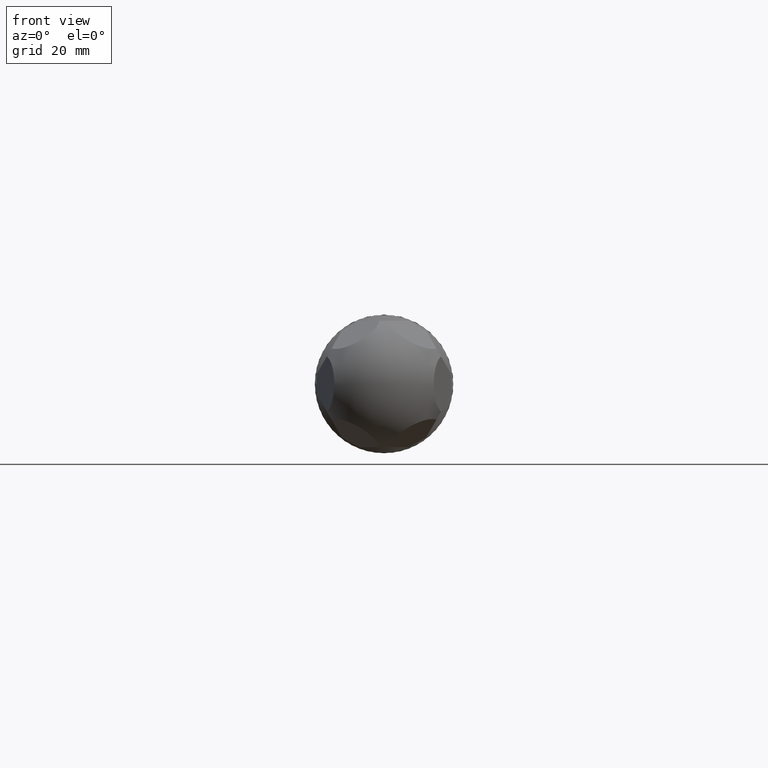
[diagram: clean part render]
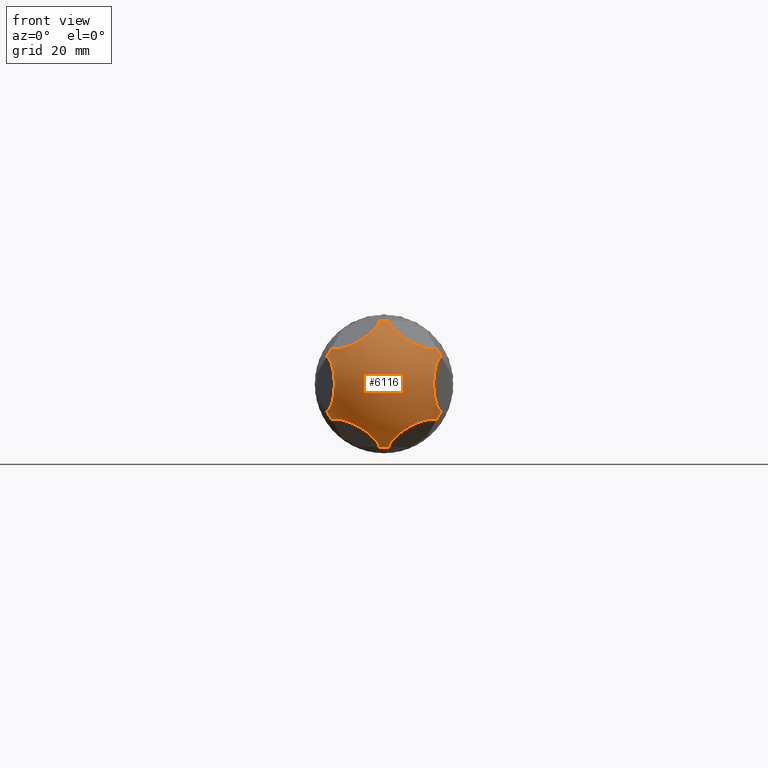
[diagram: same view with one face highlighted and labeled with its STEP entity id]
A machine part, front view. The second image highlights one B-rep face of the part: STEP entity #6116.
In plain terms, the highlighted spherical surface has radius 12 mm.
Its self-contained STEP definition (entity closure, byte-faithful):
#104 = CARTESIAN_POINT ( 'NONE',  ( -9.075063361976001275, 52.84065305851191141, 6.181529175150764388 ) ) ;
#484 = EDGE_CURVE ( 'NONE', #12026, #7731, #12144, .T. ) ;
#645 = CARTESIAN_POINT ( 'NONE',  ( 5.144817098802827005, 51.74512056941608051, 8.911084610775652948 ) ) ;
#703 = CARTESIAN_POINT ( 'NONE',  ( 10.28963419760569309, 51.74512056941608051, 6.517799810258605289E-33 ) ) ;
#704 = EDGE_CURVE ( 'NONE', #9868, #4778, #3738, .T. ) ;
#718 = CIRCLE ( 'NONE', #1258, 4.908920451586066491 ) ;
#1030 = CARTESIAN_POINT ( 'NONE',  ( 9.890892980903238652, 52.84065305851193983, -4.768470824849206480 ) ) ;
#1080 = DIRECTION ( 'NONE',  ( -0.3420201433256695456, -0.9396926207859080948, 0.000000000000000000 ) ) ;
#1222 = CARTESIAN_POINT ( 'NONE',  ( -9.482978171439643944, 47.99999999999999289, 5.474999999999947242 ) ) ;
#1258 = AXIS2_PLACEMENT_3D ( 'NONE', #6916, #5011, #9755 ) ;
#1378 = AXIS2_PLACEMENT_3D ( 'NONE', #6597, #9433, #10300 ) ;
#1452 = CARTESIAN_POINT ( 'NONE',  ( -0.8158296189273296362, 52.84065305851193983, 10.94999999999999751 ) ) ;
#1534 = DIRECTION ( 'NONE',  ( -0.4698463103929521045, -0.3420201433256697121, -0.8137976813493744688 ) ) ;
#1668 = DIRECTION ( 'NONE',  ( 0.5000000000000132117, 0.000000000000000000, -0.8660254037844309360 ) ) ;
#1676 = VERTEX_POINT ( 'NONE', #1030 ) ;
#1747 = DIRECTION ( 'NONE',  ( -0.9396926207859079838, -0.3420201433256697121, -0.000000000000000000 ) ) ;
#1797 = ORIENTED_EDGE ( 'NONE', *, *, #484, .T. ) ;
#1953 = ORIENTED_EDGE ( 'NONE', *, *, #8633, .T. ) ;
#2637 = AXIS2_PLACEMENT_3D ( 'NONE', #7490, #4015, #1668 ) ;
#2696 = DIRECTION ( 'NONE',  ( -0.3420201433256695456, 0.9396926207859080948, 0.000000000000000000 ) ) ;
#2753 = ORIENTED_EDGE ( 'NONE', *, *, #9641, .F. ) ;
#2781 = FACE_OUTER_BOUND ( 'NONE', #3601, .T. ) ;
#2950 = CIRCLE ( 'NONE', #4974, 4.908920451586067379 ) ;
#2951 = CARTESIAN_POINT ( 'NONE',  ( -5.144817098802763944, 51.74512056941608051, -8.911084610775686699 ) ) ;
#2995 = AXIS2_PLACEMENT_3D ( 'NONE', #3711, #11273, #5636 ) ;
#3046 = DIRECTION ( 'NONE',  ( -1.000000000000000000, 0.000000000000000000, -1.060145602124999431E-14 ) ) ;
#3168 = EDGE_CURVE ( 'NONE', #9868, #7731, #6066, .T. ) ;
#3296 = DIRECTION ( 'NONE',  ( -0.4698463103929635953, -0.3420201433256697676, 0.8137976813493680295 ) ) ;
#3386 = CARTESIAN_POINT ( 'NONE',  ( 5.144817098802951350, 51.74512056941608051, -8.911084610775578341 ) ) ;
#3460 = EDGE_CURVE ( 'NONE', #8931, #10712, #5737, .T. ) ;
#3523 = ORIENTED_EDGE ( 'NONE', *, *, #7488, .F. ) ;
#3601 = EDGE_LOOP ( 'NONE', ( #3523, #6814, #9665, #4802, #6406, #7167, #2753, #1953, #6112, #1797, #5041, #6340 ) ) ;
#3711 = CARTESIAN_POINT ( 'NONE',  ( 9.482978171439560455, 47.99999999999999289, 5.475000000000080469 ) ) ;
#3732 = DIRECTION ( 'NONE',  ( 0.4698463103929464424, -0.3420201433256697121, 0.8137976813493776884 ) ) ;
#3738 = CIRCLE ( 'NONE', #10156, 4.908920451586062939 ) ;
#3785 = AXIS2_PLACEMENT_3D ( 'NONE', #8881, #6180, #7979 ) ;
#3815 = EDGE_CURVE ( 'NONE', #8931, #5939, #718, .T. ) ;
#3862 = EDGE_CURVE ( 'NONE', #7371, #1676, #7949, .T. ) ;
#3893 = CARTESIAN_POINT ( 'NONE',  ( 0.8158296189272506993, 52.84065305851191141, 10.95000000000001705 ) ) ;
#3896 = DIRECTION ( 'NONE',  ( -0.8660254037844432595, 0.000000000000000000, 0.4999999999999921174 ) ) ;
#3911 = CIRCLE ( 'NONE', #9628, 4.908920451586069156 ) ;
#3935 = CARTESIAN_POINT ( 'NONE',  ( 0.000000000000000000, 47.99999999999999289, 1.368455531567204171E-45 ) ) ;
#4015 = DIRECTION ( 'NONE',  ( -0.8660254037844310471, 8.938567588209319741E-32, -0.5000000000000132117 ) ) ;
#4066 = DIRECTION ( 'NONE',  ( -1.060262988517024338E-14, 4.461165032909084819E-46, 1.000000000000000000 ) ) ;
#4276 = CARTESIAN_POINT ( 'NONE',  ( -9.890892980903258191, 52.84065305851189720, -4.768470824849213585 ) ) ;
#4397 = SPHERICAL_SURFACE ( 'NONE', #4958, 11.99999999999999822 ) ;
#4527 = CARTESIAN_POINT ( 'NONE',  ( 0.8158296189273971377, 52.84065305851193983, -10.94999999999998685 ) ) ;
#4778 = VERTEX_POINT ( 'NONE', #9906 ) ;
#4802 = ORIENTED_EDGE ( 'NONE', *, *, #8281, .T. ) ;
#4958 = AXIS2_PLACEMENT_3D ( 'NONE', #3935, #11330, #7710 ) ;
#4974 = AXIS2_PLACEMENT_3D ( 'NONE', #6740, #7675, #1080 ) ;
#5011 = DIRECTION ( 'NONE',  ( 1.765254609153998899E-14, -8.812853623292794860E-46, -1.000000000000000000 ) ) ;
#5041 = ORIENTED_EDGE ( 'NONE', *, *, #3168, .F. ) ;
#5046 = DIRECTION ( 'NONE',  ( -0.4999999999999946709, -4.240582408499997882E-15, -0.8660254037844417052 ) ) ;
#5636 = DIRECTION ( 'NONE',  ( -0.5000000000000073275, 0.000000000000000000, 0.8660254037844344888 ) ) ;
#5737 = CIRCLE ( 'NONE', #11347, 4.908920451586069156 ) ;
#5751 = EDGE_CURVE ( 'NONE', #12026, #12175, #8661, .T. ) ;
#5939 = VERTEX_POINT ( 'NONE', #4527 ) ;
#6066 = CIRCLE ( 'NONE', #11182, 4.908920451586054057 ) ;
#6112 = ORIENTED_EDGE ( 'NONE', *, *, #5751, .F. ) ;
#6116 = ADVANCED_FACE ( 'NONE', ( #2781 ), #4397, .T. ) ;
#6137 = CARTESIAN_POINT ( 'NONE',  ( -0.8158296189271665444, 52.84065305851191141, -10.95000000000001705 ) ) ;
#6180 = DIRECTION ( 'NONE',  ( 0.8660254037844417052, -6.468871966888534240E-32, -0.4999999999999948930 ) ) ;
#6340 = ORIENTED_EDGE ( 'NONE', *, *, #704, .T. ) ;
#6406 = ORIENTED_EDGE ( 'NONE', *, *, #3815, .F. ) ;
#6469 = EDGE_CURVE ( 'NONE', #8668, #1676, #6592, .T. ) ;
#6592 = CIRCLE ( 'NONE', #9782, 4.908920451586067379 ) ;
#6597 = CARTESIAN_POINT ( 'NONE',  ( -5.144817098802890953, 51.74512056941608051, 8.911084610775619197 ) ) ;
#6740 = CARTESIAN_POINT ( 'NONE',  ( -10.28963419760569664, 51.74512056941608051, -1.005364035004034762E-33 ) ) ;
#6814 = ORIENTED_EDGE ( 'NONE', *, *, #6469, .T. ) ;
#6916 = CARTESIAN_POINT ( 'NONE',  ( 1.932953797023628997E-13, 47.99999999999999289, -10.95000000000000107 ) ) ;
#7161 = CIRCLE ( 'NONE', #2637, 4.908920451586062939 ) ;
#7167 = ORIENTED_EDGE ( 'NONE', *, *, #3460, .T. ) ;
#7371 = VERTEX_POINT ( 'NONE', #8433 ) ;
#7488 = EDGE_CURVE ( 'NONE', #8668, #4778, #8640, .T. ) ;
#7490 = CARTESIAN_POINT ( 'NONE',  ( -9.482978171439523152, 47.99999999999999289, -5.475000000000145306 ) ) ;
#7675 = DIRECTION ( 'NONE',  ( 0.9396926207859079838, -0.3420201433256697121, -0.000000000000000000 ) ) ;
#7710 = DIRECTION ( 'NONE',  ( 1.000000000000000000, 0.000000000000000000, 0.000000000000000000 ) ) ;
#7731 = VERTEX_POINT ( 'NONE', #1452 ) ;
#7944 = CARTESIAN_POINT ( 'NONE',  ( -9.890892980903242204, 52.84065305851193983, 4.768470824849206480 ) ) ;
#7949 = CIRCLE ( 'NONE', #3785, 4.908920451586054057 ) ;
#7979 = DIRECTION ( 'NONE',  ( 0.4999999999999946709, 2.827054938999998456E-15, 0.8660254037844417052 ) ) ;
#8185 = CARTESIAN_POINT ( 'NONE',  ( -9.075063361975910681, 52.84065305851193983, -6.181529175150876299 ) ) ;
#8281 = EDGE_CURVE ( 'NONE', #7371, #5939, #3911, .T. ) ;
#8433 = CARTESIAN_POINT ( 'NONE',  ( 9.075063361976038578, 52.84065305851193983, -6.181529175150688893 ) ) ;
#8633 = EDGE_CURVE ( 'NONE', #9233, #12175, #2950, .T. ) ;
#8640 = CIRCLE ( 'NONE', #2995, 4.908920451586058498 ) ;
#8661 = CIRCLE ( 'NONE', #11908, 4.908920451586054057 ) ;
#8668 = VERTEX_POINT ( 'NONE', #10027 ) ;
#8881 = CARTESIAN_POINT ( 'NONE',  ( 9.482978171439640391, 47.99999999999999289, -5.474999999999947242 ) ) ;
#8931 = VERTEX_POINT ( 'NONE', #6137 ) ;
#9233 = VERTEX_POINT ( 'NONE', #4276 ) ;
#9433 = DIRECTION ( 'NONE',  ( 0.4698463103929578777, -0.3420201433256697121, -0.8137976813493712491 ) ) ;
#9628 = AXIS2_PLACEMENT_3D ( 'NONE', #3386, #3296, #10865 ) ;
#9641 = EDGE_CURVE ( 'NONE', #9233, #10712, #7161, .T. ) ;
#9665 = ORIENTED_EDGE ( 'NONE', *, *, #3862, .F. ) ;
#9744 = CARTESIAN_POINT ( 'NONE',  ( -1.160987972426142227E-13, 47.99999999999999289, 10.95000000000000639 ) ) ;
#9755 = DIRECTION ( 'NONE',  ( 1.000000000000000000, 4.240582408499986838E-15, 1.766909336874994529E-14 ) ) ;
#9782 = AXIS2_PLACEMENT_3D ( 'NONE', #703, #1747, #2696 ) ;
#9868 = VERTEX_POINT ( 'NONE', #3893 ) ;
#9906 = CARTESIAN_POINT ( 'NONE',  ( 9.075063361975947984, 52.84065305851193983, 6.181529175150822120 ) ) ;
#10027 = CARTESIAN_POINT ( 'NONE',  ( 9.890892980903245757, 52.84065305851191141, 4.768470824849213585 ) ) ;
#10156 = AXIS2_PLACEMENT_3D ( 'NONE', #645, #1534, #11899 ) ;
#10300 = DIRECTION ( 'NONE',  ( 0.8660254037844364872, 1.413527469499997650E-15, 0.5000000000000036637 ) ) ;
#10712 = VERTEX_POINT ( 'NONE', #8185 ) ;
#10865 = DIRECTION ( 'NONE',  ( -0.8660254037844327124, 0.000000000000000000, -0.5000000000000101030 ) ) ;
#11182 = AXIS2_PLACEMENT_3D ( 'NONE', #9744, #4066, #3046 ) ;
#11273 = DIRECTION ( 'NONE',  ( 0.8660254037844345998, -8.938567588209330689E-32, 0.5000000000000072164 ) ) ;
#11330 = DIRECTION ( 'NONE',  ( -0.000000000000000000, 0.000000000000000000, 1.000000000000000000 ) ) ;
#11347 = AXIS2_PLACEMENT_3D ( 'NONE', #2951, #3732, #3896 ) ;
#11587 = DIRECTION ( 'NONE',  ( -0.8660254037844417052, 6.468871966888534240E-32, 0.4999999999999948930 ) ) ;
#11899 = DIRECTION ( 'NONE',  ( 0.8660254037844398178, 0.000000000000000000, -0.4999999999999980016 ) ) ;
#11908 = AXIS2_PLACEMENT_3D ( 'NONE', #1222, #11587, #5046 ) ;
#12026 = VERTEX_POINT ( 'NONE', #104 ) ;
#12144 = CIRCLE ( 'NONE', #1378, 4.908920451586059386 ) ;
#12175 = VERTEX_POINT ( 'NONE', #7944 ) ;